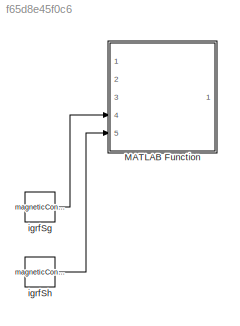
MODEL slx_f65d8e45f0c6
KIND model
CONFIG AbsTol = auto
CONFIG EnableMultiTasking = off
CONFIG FixedStep = auto
CONFIG MaxStep = auto
CONFIG MinStep = auto
CONFIG RelTol = 1e-3
CONFIG SampleTimeConstraint = Unconstrained
CONFIG Solver = VariableStepAuto
CONFIG SolverName = VariableStepAuto
CONFIG StartTime = 0.0
CONFIG StopTime = 10.0
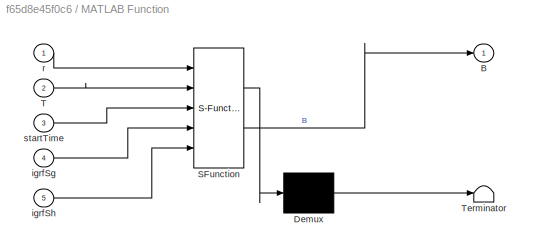
BLOCK [SubSystem] MATLAB Function
  ErrorFcn = Stateflow.Translate.translate
  PermitHierarchicalResolution = ExplicitOnly
  Ports = [5, 1]
  RequestExecContextInheritance = off
  SFBlockType = MATLAB Function
  TreatAsAtomicUnit = on
BLOCK [Demux] MATLAB Function/ Demux 
  Outputs = 1
  Ports = [1, 1]
BLOCK [S-Function] MATLAB Function/ SFunction 
  EnableBusSupport = off
  FunctionName = sf_sfun
  PortCounts = [5 2]
  Ports = [5, 2]
  SFcnIsStateOwnerBlock = off
  SFunctionDeploymentMode = off
  Tag = Stateflow S-Function 2
BLOCK [Terminator] MATLAB Function/ Terminator 
BLOCK [Outport] MATLAB Function/B
BLOCK [Inport] MATLAB Function/T
  Port = 2
BLOCK [Inport] MATLAB Function/igrfSg
  Port = 4
BLOCK [Inport] MATLAB Function/igrfSh
  Port = 5
BLOCK [Inport] MATLAB Function/r
BLOCK [Inport] MATLAB Function/startTime
  Port = 3
BLOCK [Constant] igrfSg
  Value = magneticConstants.igrfSg
BLOCK [Constant] igrfSh
  Value = magneticConstants.igrfSh
LINE igrfSg:1 -> MATLAB Function:4
LINE igrfSh:1 -> MATLAB Function:5
CHART MATLAB Function states=1 transitions=1
  STATE_LABEL 'eML_blk_kernel()'
  STATE_LABEL 'SCRIPT:\nfunction B = fcn(r, T, startTime, igrfSg, igrfSh)\n\ndays = startTime + T/86400;\n\n[rNorm, lat, lon] = carToGCS(r, T);\n[Br,Bt,Bp] = magnet(rNorm,lat,lon,days,igrfSg,igrfSh);\n[Bx,By,Bz] = msph2inert(Br,Bt,Bp,LST,lat);\nB = [Bx; By; Bz];\nend\n'
CHART  states=0 transitions=0
